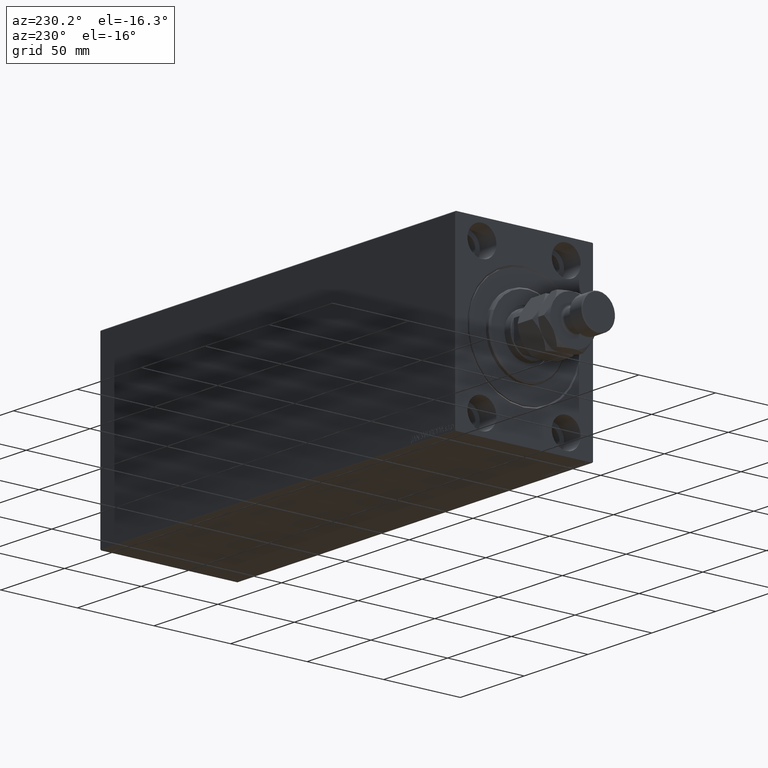
[diagram: clean part render]
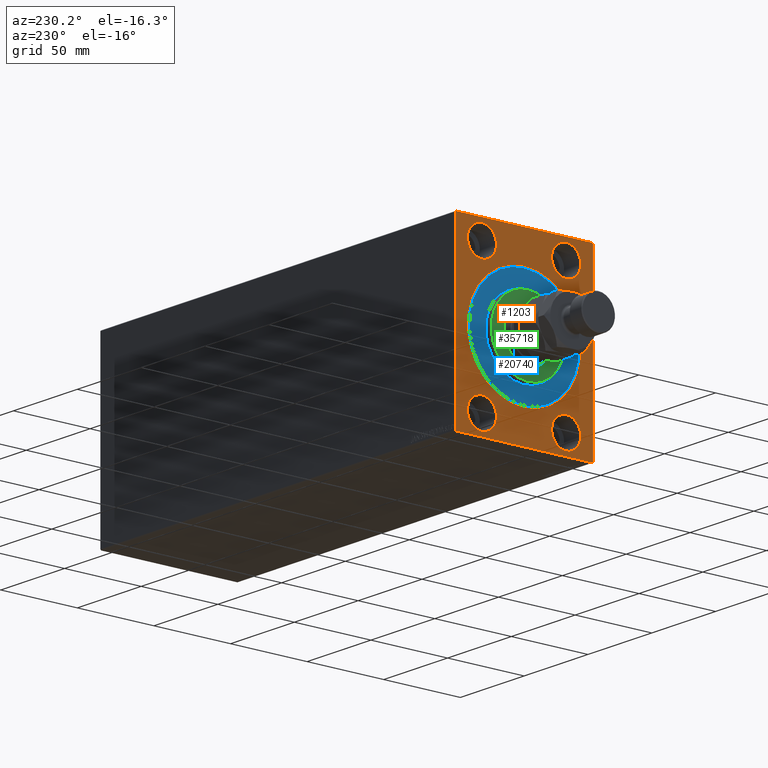
[diagram: same view with three faces highlighted in distinct colors, each labeled with its STEP entity id]
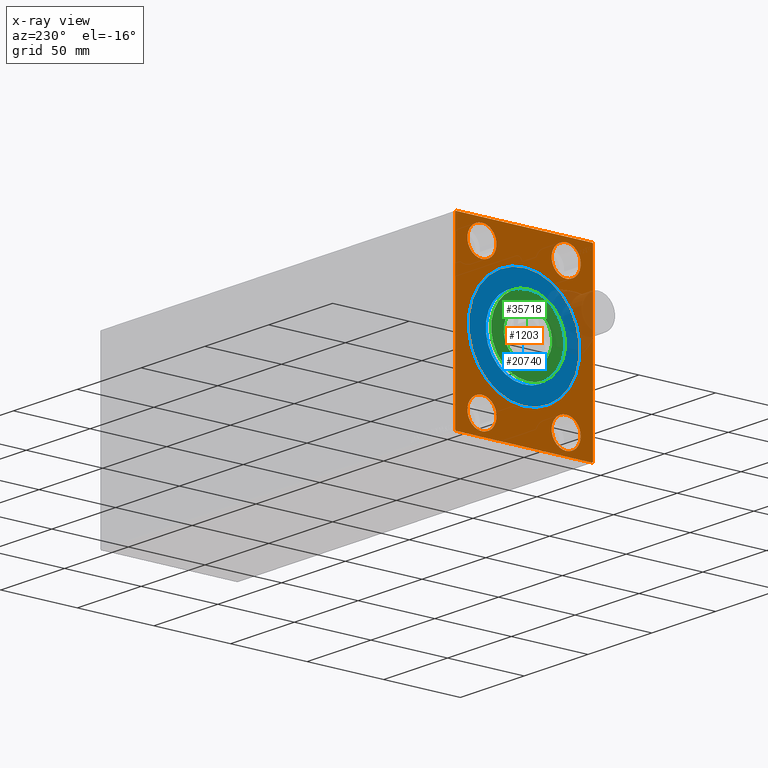
[diagram: x-ray of the same camera — body ghosted, the three highlighted faces saturated]
A machine part, auxiliary view with three faces highlighted in distinct colors.
The next image is the same camera in x-ray (body ghosted, the three faces saturated) — at least one of them is partly hidden behind the body in this view.
Their STEP definitions:

[orange] entity #1203 — the highlighted planar face has unit normal (1, 0, 0).
#392 = ORIENTED_EDGE ( 'NONE', *, *, #2142, .F. ) ;
#507 = CARTESIAN_POINT ( 'NONE',  ( 0.000000000000000000, 27.49999999999998934, -54.49999999999998579 ) ) ;
#711 = ORIENTED_EDGE ( 'NONE', *, *, #12694, .T. ) ;
#1203 = ADVANCED_FACE ( 'NONE', ( #13589, #27181, #10124, #41204, #9697, #23733 ), #6233, .F. ) ;
#1841 = EDGE_CURVE ( 'NONE', #9637, #39836, #34186, .T. ) ;
#2142 = EDGE_CURVE ( 'NONE', #14041, #44082, #45306, .T. ) ;
#2568 = CARTESIAN_POINT ( 'NONE',  ( 0.000000000000000000, -45.00000000000000000, 57.49999999999999289 ) ) ;
#2664 = DIRECTION ( 'NONE',  ( -0.000000000000000000, -0.7071067811865671127, 0.7071067811865279218 ) ) ;
#2780 = DIRECTION ( 'NONE',  ( -1.000000000000000000, 0.000000000000000000, 0.000000000000000000 ) ) ;
#3236 = CARTESIAN_POINT ( 'NONE',  ( 0.000000000000000000, 4.531193156845217837E-15, -37.00000000000008527 ) ) ;
#4355 = CIRCLE ( 'NONE', #15411, 9.500000000000001776 ) ;
#4423 = DIRECTION ( 'NONE',  ( -1.000000000000000000, 0.000000000000000000, 0.000000000000000000 ) ) ;
#4480 = CARTESIAN_POINT ( 'NONE',  ( 0.000000000000000000, 45.00000000000000000, 57.50000000000000711 ) ) ;
#4487 = CARTESIAN_POINT ( 'NONE',  ( 0.000000000000000000, 27.50000000000001066, 45.00000000000000711 ) ) ;
#5142 = EDGE_CURVE ( 'NONE', #42807, #31419, #4355, .T. ) ;
#5527 = CIRCLE ( 'NONE', #37123, 9.500000000000001776 ) ;
#5654 = LINE ( 'NONE', #22687, #32295 ) ;
#6233 = PLANE ( 'NONE',  #37349 ) ;
#6273 = CARTESIAN_POINT ( 'NONE',  ( 0.000000000000000000, -27.49999999999998934, 35.50000000000000711 ) ) ;
#6382 = VERTEX_POINT ( 'NONE', #37944 ) ;
#6510 = ORIENTED_EDGE ( 'NONE', *, *, #44429, .F. ) ;
#6589 = ORIENTED_EDGE ( 'NONE', *, *, #22812, .T. ) ;
#6809 = EDGE_LOOP ( 'NONE', ( #6510, #11216 ) ) ;
#6939 = ORIENTED_EDGE ( 'NONE', *, *, #36556, .F. ) ;
#7248 = CARTESIAN_POINT ( 'NONE',  ( 0.000000000000000000, 0.000000000000000000, 0.000000000000000000 ) ) ;
#8079 = ORIENTED_EDGE ( 'NONE', *, *, #32012, .T. ) ;
#8090 = AXIS2_PLACEMENT_3D ( 'NONE', #42616, #4423, #21909 ) ;
#8099 = EDGE_LOOP ( 'NONE', ( #14719, #6589, #40373, #42145, #392, #711, #8319, #34102 ) ) ;
#8319 = ORIENTED_EDGE ( 'NONE', *, *, #37250, .F. ) ;
#8341 = CARTESIAN_POINT ( 'NONE',  ( 0.000000000000000000, 44.50000000000000000, 57.50000000000000711 ) ) ;
#8735 = EDGE_LOOP ( 'NONE', ( #29106, #32923 ) ) ;
#8911 = VERTEX_POINT ( 'NONE', #26658 ) ;
#9637 = VERTEX_POINT ( 'NONE', #25347 ) ;
#9697 = FACE_BOUND ( 'NONE', #24821, .T. ) ;
#10124 = FACE_BOUND ( 'NONE', #8735, .T. ) ;
#10447 = CARTESIAN_POINT ( 'NONE',  ( 0.000000000000000000, -27.50000000000000000, -54.49999999999998579 ) ) ;
#10473 = DIRECTION ( 'NONE',  ( 0.000000000000000000, 0.000000000000000000, -1.000000000000000000 ) ) ;
#10612 = VERTEX_POINT ( 'NONE', #32243 ) ;
#10635 = DIRECTION ( 'NONE',  ( 1.000000000000000000, 0.000000000000000000, 0.000000000000000000 ) ) ;
#10695 = DIRECTION ( 'NONE',  ( 1.000000000000000000, 0.000000000000000000, 0.000000000000000000 ) ) ;
#11181 = CARTESIAN_POINT ( 'NONE',  ( 0.000000000000000000, -27.50000000000000000, -35.49999999999998579 ) ) ;
#11216 = ORIENTED_EDGE ( 'NONE', *, *, #5142, .F. ) ;
#11773 = AXIS2_PLACEMENT_3D ( 'NONE', #26234, #36570, #40494 ) ;
#12010 = VERTEX_POINT ( 'NONE', #6273 ) ;
#12356 = CARTESIAN_POINT ( 'NONE',  ( 0.000000000000000000, -27.50000000000000000, -44.99999999999998579 ) ) ;
#12642 = VERTEX_POINT ( 'NONE', #11181 ) ;
#12694 = EDGE_CURVE ( 'NONE', #14041, #42310, #38561, .T. ) ;
#13405 = CARTESIAN_POINT ( 'NONE',  ( 0.000000000000000000, -45.00000000000000000, 56.99999999999999289 ) ) ;
#13490 = AXIS2_PLACEMENT_3D ( 'NONE', #26696, #23231, #26005 ) ;
#13589 = FACE_BOUND ( 'NONE', #34972, .T. ) ;
#13637 = ORIENTED_EDGE ( 'NONE', *, *, #40428, .T. ) ;
#13747 = VECTOR ( 'NONE', #17404, 1000.000000000000000 ) ;
#14041 = VERTEX_POINT ( 'NONE', #44249 ) ;
#14105 = DIRECTION ( 'NONE',  ( 0.000000000000000000, 0.000000000000000000, -1.000000000000000000 ) ) ;
#14584 = EDGE_CURVE ( 'NONE', #22923, #44082, #40083, .T. ) ;
#14719 = ORIENTED_EDGE ( 'NONE', *, *, #24465, .F. ) ;
#15411 = AXIS2_PLACEMENT_3D ( 'NONE', #4487, #36231, #43601 ) ;
#15681 = ORIENTED_EDGE ( 'NONE', *, *, #44117, .F. ) ;
#16813 = CARTESIAN_POINT ( 'NONE',  ( 0.000000000000000000, 0.000000000000000000, 0.000000000000000000 ) ) ;
#17404 = DIRECTION ( 'NONE',  ( 0.000000000000000000, -0.7071067811865279218, -0.7071067811865672237 ) ) ;
#17479 = CARTESIAN_POINT ( 'NONE',  ( 0.000000000000000000, 45.00000000000001421, -57.50000000000000711 ) ) ;
#17485 = DIRECTION ( 'NONE',  ( 0.000000000000000000, 0.000000000000000000, 1.000000000000000000 ) ) ;
#17604 = DIRECTION ( 'NONE',  ( 0.000000000000000000, 0.000000000000000000, 1.000000000000000000 ) ) ;
#17618 = LINE ( 'NONE', #4480, #25134 ) ;
#17720 = CARTESIAN_POINT ( 'NONE',  ( 0.000000000000000000, -27.49999999999998934, 45.00000000000000711 ) ) ;
#17765 = EDGE_CURVE ( 'NONE', #21519, #12642, #25539, .T. ) ;
#17962 = LINE ( 'NONE', #28998, #21544 ) ;
#19402 = CIRCLE ( 'NONE', #34810, 9.500000000000001776 ) ;
#20277 = DIRECTION ( 'NONE',  ( 0.000000000000000000, 0.000000000000000000, 1.000000000000000000 ) ) ;
#21392 = DIRECTION ( 'NONE',  ( -1.000000000000000000, 0.000000000000000000, 0.000000000000000000 ) ) ;
#21415 = DIRECTION ( 'NONE',  ( 0.000000000000000000, 1.000000000000000000, 0.000000000000000000 ) ) ;
#21519 = VERTEX_POINT ( 'NONE', #10447 ) ;
#21544 = VECTOR ( 'NONE', #21415, 1000.000000000000000 ) ;
#21831 = DIRECTION ( 'NONE',  ( 0.000000000000000000, -1.206764157201257045E-16, 1.000000000000000000 ) ) ;
#21909 = DIRECTION ( 'NONE',  ( 0.000000000000000000, 0.000000000000000000, 1.000000000000000000 ) ) ;
#22193 = CARTESIAN_POINT ( 'NONE',  ( 0.000000000000000000, 27.50000000000001066, 35.50000000000000711 ) ) ;
#22687 = CARTESIAN_POINT ( 'NONE',  ( 0.000000000000000000, -45.00000000000000000, 56.99999999999999289 ) ) ;
#22812 = EDGE_CURVE ( 'NONE', #37174, #8911, #5654, .T. ) ;
#22923 = VERTEX_POINT ( 'NONE', #40162 ) ;
#23231 = DIRECTION ( 'NONE',  ( -1.000000000000000000, 0.000000000000000000, 0.000000000000000000 ) ) ;
#23733 = FACE_OUTER_BOUND ( 'NONE', #8099, .T. ) ;
#24465 = EDGE_CURVE ( 'NONE', #37174, #39836, #34091, .T. ) ;
#24821 = EDGE_LOOP ( 'NONE', ( #15681, #38513 ) ) ;
#25134 = VECTOR ( 'NONE', #38544, 1000.000000000000000 ) ;
#25230 = CIRCLE ( 'NONE', #13490, 9.500000000000001776 ) ;
#25347 = CARTESIAN_POINT ( 'NONE',  ( 0.000000000000000000, -44.50000000000000000, -57.50000000000000711 ) ) ;
#25527 = EDGE_LOOP ( 'NONE', ( #30494, #6939 ) ) ;
#25539 = CIRCLE ( 'NONE', #43895, 9.500000000000001776 ) ;
#26005 = DIRECTION ( 'NONE',  ( 0.000000000000000000, 0.000000000000000000, 1.000000000000000000 ) ) ;
#26234 = CARTESIAN_POINT ( 'NONE',  ( 0.000000000000000000, 27.50000000000001066, 45.00000000000000711 ) ) ;
#26400 = DIRECTION ( 'NONE',  ( -1.000000000000000000, 0.000000000000000000, 0.000000000000000000 ) ) ;
#26658 = CARTESIAN_POINT ( 'NONE',  ( 0.000000000000000000, -44.50000000000000000, 57.49999999999999289 ) ) ;
#26696 = CARTESIAN_POINT ( 'NONE',  ( 0.000000000000000000, 27.49999999999998934, -44.99999999999998579 ) ) ;
#27181 = FACE_BOUND ( 'NONE', #25527, .T. ) ;
#28414 = VECTOR ( 'NONE', #42841, 1000.000000000000000 ) ;
#28745 = CIRCLE ( 'NONE', #41246, 9.500000000000001776 ) ;
#28998 = CARTESIAN_POINT ( 'NONE',  ( 0.000000000000000000, -45.00000000000000000, -57.50000000000000711 ) ) ;
#29106 = ORIENTED_EDGE ( 'NONE', *, *, #38578, .F. ) ;
#29516 = CARTESIAN_POINT ( 'NONE',  ( 0.000000000000000000, 45.00000000000000000, 57.00000000000000711 ) ) ;
#30494 = ORIENTED_EDGE ( 'NONE', *, *, #42739, .F. ) ;
#30539 = EDGE_CURVE ( 'NONE', #12010, #10612, #28745, .T. ) ;
#30855 = DIRECTION ( 'NONE',  ( 1.000000000000000000, 0.000000000000000000, 0.000000000000000000 ) ) ;
#31419 = VERTEX_POINT ( 'NONE', #35423 ) ;
#32012 = EDGE_CURVE ( 'NONE', #6382, #39900, #44937, .T. ) ;
#32243 = CARTESIAN_POINT ( 'NONE',  ( 0.000000000000000000, -27.49999999999998934, 54.50000000000000711 ) ) ;
#32295 = VECTOR ( 'NONE', #36720, 1000.000000000000000 ) ;
#32923 = ORIENTED_EDGE ( 'NONE', *, *, #30539, .F. ) ;
#32973 = VECTOR ( 'NONE', #21831, 1000.000000000000000 ) ;
#33255 = EDGE_CURVE ( 'NONE', #22923, #8911, #17618, .T. ) ;
#33826 = VECTOR ( 'NONE', #45104, 1000.000000000000000 ) ;
#34091 = LINE ( 'NONE', #2568, #33826 ) ;
#34102 = ORIENTED_EDGE ( 'NONE', *, *, #1841, .T. ) ;
#34186 = LINE ( 'NONE', #44527, #41764 ) ;
#34416 = DIRECTION ( 'NONE',  ( -1.000000000000000000, 0.000000000000000000, 0.000000000000000000 ) ) ;
#34530 = CARTESIAN_POINT ( 'NONE',  ( 0.000000000000000000, -45.00000000000000000, -57.00000000000003553 ) ) ;
#34810 = AXIS2_PLACEMENT_3D ( 'NONE', #41643, #2780, #20277 ) ;
#34882 = CARTESIAN_POINT ( 'NONE',  ( 0.000000000000000000, 45.00000000000001421, -56.99999999999997868 ) ) ;
#34972 = EDGE_LOOP ( 'NONE', ( #8079, #13637 ) ) ;
#35160 = VERTEX_POINT ( 'NONE', #37682 ) ;
#35423 = CARTESIAN_POINT ( 'NONE',  ( 0.000000000000000000, 27.50000000000001066, 54.50000000000000711 ) ) ;
#35589 = AXIS2_PLACEMENT_3D ( 'NONE', #38479, #10635, #14105 ) ;
#36231 = DIRECTION ( 'NONE',  ( -1.000000000000000000, 0.000000000000000000, 0.000000000000000000 ) ) ;
#36556 = EDGE_CURVE ( 'NONE', #37075, #35160, #25230, .T. ) ;
#36570 = DIRECTION ( 'NONE',  ( -1.000000000000000000, 0.000000000000000000, 0.000000000000000000 ) ) ;
#36720 = DIRECTION ( 'NONE',  ( -0.000000000000000000, 0.7071067811865279218, 0.7071067811865671127 ) ) ;
#36730 = CIRCLE ( 'NONE', #11773, 9.500000000000001776 ) ;
#37075 = VERTEX_POINT ( 'NONE', #507 ) ;
#37123 = AXIS2_PLACEMENT_3D ( 'NONE', #41987, #34416, #17604 ) ;
#37174 = VERTEX_POINT ( 'NONE', #13405 ) ;
#37250 = EDGE_CURVE ( 'NONE', #9637, #42310, #17962, .T. ) ;
#37349 = AXIS2_PLACEMENT_3D ( 'NONE', #16813, #30855, #44870 ) ;
#37682 = CARTESIAN_POINT ( 'NONE',  ( 0.000000000000000000, 27.49999999999998934, -35.49999999999998579 ) ) ;
#37944 = CARTESIAN_POINT ( 'NONE',  ( 0.000000000000000000, 0.000000000000000000, 37.00000000000008527 ) ) ;
#38479 = CARTESIAN_POINT ( 'NONE',  ( 0.000000000000000000, 0.000000000000000000, 0.000000000000000000 ) ) ;
#38513 = ORIENTED_EDGE ( 'NONE', *, *, #17765, .F. ) ;
#38544 = DIRECTION ( 'NONE',  ( 0.000000000000000000, -1.000000000000000000, -1.541976423090495387E-16 ) ) ;
#38561 = LINE ( 'NONE', #34882, #13747 ) ;
#38578 = EDGE_CURVE ( 'NONE', #10612, #12010, #19402, .T. ) ;
#39836 = VERTEX_POINT ( 'NONE', #34530 ) ;
#39900 = VERTEX_POINT ( 'NONE', #3236 ) ;
#40083 = LINE ( 'NONE', #8341, #28414 ) ;
#40162 = CARTESIAN_POINT ( 'NONE',  ( 0.000000000000000000, 44.50000000000000000, 57.50000000000000711 ) ) ;
#40373 = ORIENTED_EDGE ( 'NONE', *, *, #33255, .F. ) ;
#40420 = DIRECTION ( 'NONE',  ( 0.000000000000000000, 0.000000000000000000, 1.000000000000000000 ) ) ;
#40428 = EDGE_CURVE ( 'NONE', #39900, #6382, #43687, .T. ) ;
#40494 = DIRECTION ( 'NONE',  ( 0.000000000000000000, 0.000000000000000000, 1.000000000000000000 ) ) ;
#41142 = CIRCLE ( 'NONE', #8090, 9.500000000000001776 ) ;
#41204 = FACE_BOUND ( 'NONE', #6809, .T. ) ;
#41246 = AXIS2_PLACEMENT_3D ( 'NONE', #17720, #21392, #17485 ) ;
#41270 = AXIS2_PLACEMENT_3D ( 'NONE', #7248, #10695, #10473 ) ;
#41643 = CARTESIAN_POINT ( 'NONE',  ( 0.000000000000000000, -27.49999999999998934, 45.00000000000000711 ) ) ;
#41764 = VECTOR ( 'NONE', #2664, 1000.000000000000000 ) ;
#41987 = CARTESIAN_POINT ( 'NONE',  ( 0.000000000000000000, 27.49999999999998934, -44.99999999999998579 ) ) ;
#42145 = ORIENTED_EDGE ( 'NONE', *, *, #14584, .T. ) ;
#42310 = VERTEX_POINT ( 'NONE', #42546 ) ;
#42546 = CARTESIAN_POINT ( 'NONE',  ( 0.000000000000000000, 44.49999999999998579, -57.50000000000000711 ) ) ;
#42616 = CARTESIAN_POINT ( 'NONE',  ( 0.000000000000000000, -27.50000000000000000, -44.99999999999998579 ) ) ;
#42739 = EDGE_CURVE ( 'NONE', #35160, #37075, #5527, .T. ) ;
#42807 = VERTEX_POINT ( 'NONE', #22193 ) ;
#42841 = DIRECTION ( 'NONE',  ( -0.000000000000000000, 0.7071067811865671127, -0.7071067811865279218 ) ) ;
#43601 = DIRECTION ( 'NONE',  ( 0.000000000000000000, 0.000000000000000000, 1.000000000000000000 ) ) ;
#43687 = CIRCLE ( 'NONE', #35589, 37.00000000000008527 ) ;
#43895 = AXIS2_PLACEMENT_3D ( 'NONE', #12356, #26400, #40420 ) ;
#44082 = VERTEX_POINT ( 'NONE', #29516 ) ;
#44117 = EDGE_CURVE ( 'NONE', #12642, #21519, #41142, .T. ) ;
#44249 = CARTESIAN_POINT ( 'NONE',  ( 0.000000000000000000, 45.00000000000001421, -56.99999999999997868 ) ) ;
#44429 = EDGE_CURVE ( 'NONE', #31419, #42807, #36730, .T. ) ;
#44527 = CARTESIAN_POINT ( 'NONE',  ( 0.000000000000000000, -44.50000000000000000, -57.50000000000000711 ) ) ;
#44870 = DIRECTION ( 'NONE',  ( 0.000000000000000000, 0.000000000000000000, -1.000000000000000000 ) ) ;
#44937 = CIRCLE ( 'NONE', #41270, 37.00000000000008527 ) ;
#45104 = DIRECTION ( 'NONE',  ( 0.000000000000000000, 0.000000000000000000, -1.000000000000000000 ) ) ;
#45306 = LINE ( 'NONE', #17479, #32973 ) ;

[blue] entity #20740 — the highlighted planar face has unit normal (1, 0, -0).
#364 = FACE_OUTER_BOUND ( 'NONE', #13105, .T. ) ;
#3047 = AXIS2_PLACEMENT_3D ( 'NONE', #14942, #14721, #35864 ) ;
#4715 = FACE_BOUND ( 'NONE', #7528, .T. ) ;
#6252 = VERTEX_POINT ( 'NONE', #8063 ) ;
#6733 = ORIENTED_EDGE ( 'NONE', *, *, #38198, .F. ) ;
#6900 = CIRCLE ( 'NONE', #31864, 36.00000000000000000 ) ;
#7528 = EDGE_LOOP ( 'NONE', ( #10458, #12015 ) ) ;
#7645 = EDGE_CURVE ( 'NONE', #24164, #15639, #35186, .T. ) ;
#8063 = CARTESIAN_POINT ( 'NONE',  ( 0.000000000000000000, 0.000000000000000000, -36.00000000000000000 ) ) ;
#9631 = DIRECTION ( 'NONE',  ( 0.000000000000000000, 0.000000000000000000, -1.000000000000000000 ) ) ;
#10458 = ORIENTED_EDGE ( 'NONE', *, *, #30519, .F. ) ;
#10945 = CARTESIAN_POINT ( 'NONE',  ( 0.000000000000000000, 0.000000000000000000, 0.000000000000000000 ) ) ;
#10952 = CARTESIAN_POINT ( 'NONE',  ( 0.000000000000000000, 0.000000000000000000, 0.000000000000000000 ) ) ;
#12015 = ORIENTED_EDGE ( 'NONE', *, *, #7645, .F. ) ;
#12420 = AXIS2_PLACEMENT_3D ( 'NONE', #45026, #41138, #9631 ) ;
#13105 = EDGE_LOOP ( 'NONE', ( #14014, #6733 ) ) ;
#14014 = ORIENTED_EDGE ( 'NONE', *, *, #35204, .F. ) ;
#14126 = CARTESIAN_POINT ( 'NONE',  ( 0.000000000000000000, 4.408728476930470856E-15, 36.00000000000000000 ) ) ;
#14721 = DIRECTION ( 'NONE',  ( 1.000000000000000000, -0.000000000000000000, 0.000000000000000000 ) ) ;
#14942 = CARTESIAN_POINT ( 'NONE',  ( 0.000000000000000000, 0.000000000000000000, 0.000000000000000000 ) ) ;
#15639 = VERTEX_POINT ( 'NONE', #20034 ) ;
#17863 = DIRECTION ( 'NONE',  ( -1.000000000000000000, 0.000000000000000000, 0.000000000000000000 ) ) ;
#20034 = CARTESIAN_POINT ( 'NONE',  ( 0.000000000000000000, 0.000000000000000000, 25.00000000000000000 ) ) ;
#20740 = ADVANCED_FACE ( 'NONE', ( #4715, #364 ), #21982, .F. ) ;
#20979 = VERTEX_POINT ( 'NONE', #14126 ) ;
#21077 = DIRECTION ( 'NONE',  ( 0.000000000000000000, 0.000000000000000000, 1.000000000000000000 ) ) ;
#21982 = PLANE ( 'NONE',  #31506 ) ;
#23329 = CARTESIAN_POINT ( 'NONE',  ( 0.000000000000000000, 3.061616997868383043E-15, -25.00000000000000000 ) ) ;
#24164 = VERTEX_POINT ( 'NONE', #23329 ) ;
#26701 = AXIS2_PLACEMENT_3D ( 'NONE', #10952, #17863, #21077 ) ;
#30519 = EDGE_CURVE ( 'NONE', #15639, #24164, #32431, .T. ) ;
#31506 = AXIS2_PLACEMENT_3D ( 'NONE', #10945, #35555, #36009 ) ;
#31725 = DIRECTION ( 'NONE',  ( 0.000000000000000000, 0.000000000000000000, 1.000000000000000000 ) ) ;
#31864 = AXIS2_PLACEMENT_3D ( 'NONE', #37948, #35156, #31725 ) ;
#32431 = CIRCLE ( 'NONE', #3047, 25.00000000000000000 ) ;
#35156 = DIRECTION ( 'NONE',  ( -1.000000000000000000, 0.000000000000000000, 0.000000000000000000 ) ) ;
#35186 = CIRCLE ( 'NONE', #12420, 25.00000000000000000 ) ;
#35204 = EDGE_CURVE ( 'NONE', #6252, #20979, #35466, .T. ) ;
#35466 = CIRCLE ( 'NONE', #26701, 36.00000000000000000 ) ;
#35555 = DIRECTION ( 'NONE',  ( -1.000000000000000000, 0.000000000000000000, 0.000000000000000000 ) ) ;
#35864 = DIRECTION ( 'NONE',  ( 0.000000000000000000, 0.000000000000000000, -1.000000000000000000 ) ) ;
#36009 = DIRECTION ( 'NONE',  ( 0.000000000000000000, 0.000000000000000000, 1.000000000000000000 ) ) ;
#37948 = CARTESIAN_POINT ( 'NONE',  ( 0.000000000000000000, 0.000000000000000000, 0.000000000000000000 ) ) ;
#38198 = EDGE_CURVE ( 'NONE', #20979, #6252, #6900, .T. ) ;
#41138 = DIRECTION ( 'NONE',  ( 1.000000000000000000, -0.000000000000000000, 0.000000000000000000 ) ) ;
#45026 = CARTESIAN_POINT ( 'NONE',  ( 0.000000000000000000, 0.000000000000000000, 0.000000000000000000 ) ) ;

[green] entity #35718 — the highlighted planar face has unit normal (-1, 0, 0).
#758 = CARTESIAN_POINT ( 'NONE',  ( 3.000000000000000000, 0.000000000000000000, 0.000000000000000000 ) ) ;
#2149 = CIRCLE ( 'NONE', #41147, 24.00000000000000711 ) ;
#2314 = CARTESIAN_POINT ( 'NONE',  ( 3.000000000000000000, 0.000000000000000000, 0.000000000000000000 ) ) ;
#4201 = DIRECTION ( 'NONE',  ( 0.000000000000000000, 0.000000000000000000, -1.000000000000000000 ) ) ;
#4586 = VERTEX_POINT ( 'NONE', #21175 ) ;
#5818 = CARTESIAN_POINT ( 'NONE',  ( 3.000000000000000000, 3.000384657911015469E-15, -24.00000000000000711 ) ) ;
#6741 = CIRCLE ( 'NONE', #32468, 15.75000000000000000 ) ;
#6758 = CARTESIAN_POINT ( 'NONE',  ( 3.000000000000000000, 0.000000000000000000, 0.000000000000000000 ) ) ;
#8547 = EDGE_CURVE ( 'NONE', #29883, #43126, #33037, .T. ) ;
#8767 = CARTESIAN_POINT ( 'NONE',  ( 3.000000000000000000, 1.928818708657080950E-15, -15.75000000000000000 ) ) ;
#10065 = ORIENTED_EDGE ( 'NONE', *, *, #28582, .T. ) ;
#13496 = ORIENTED_EDGE ( 'NONE', *, *, #20952, .T. ) ;
#16462 = DIRECTION ( 'NONE',  ( -1.000000000000000000, 0.000000000000000000, -0.000000000000000000 ) ) ;
#20480 = FACE_OUTER_BOUND ( 'NONE', #28065, .T. ) ;
#20795 = DIRECTION ( 'NONE',  ( 0.000000000000000000, 0.000000000000000000, -1.000000000000000000 ) ) ;
#20952 = EDGE_CURVE ( 'NONE', #4586, #34699, #32262, .T. ) ;
#21175 = CARTESIAN_POINT ( 'NONE',  ( 3.000000000000000000, 0.000000000000000000, 24.00000000000000711 ) ) ;
#21194 = ORIENTED_EDGE ( 'NONE', *, *, #8547, .T. ) ;
#22745 = CARTESIAN_POINT ( 'NONE',  ( 3.000000000000000000, 0.000000000000000000, 0.000000000000000000 ) ) ;
#23185 = EDGE_CURVE ( 'NONE', #34699, #4586, #2149, .T. ) ;
#23939 = FACE_BOUND ( 'NONE', #34176, .T. ) ;
#28065 = EDGE_LOOP ( 'NONE', ( #13496, #29564 ) ) ;
#28582 = EDGE_CURVE ( 'NONE', #43126, #29883, #6741, .T. ) ;
#28813 = CARTESIAN_POINT ( 'NONE',  ( 3.000000000000000000, 0.000000000000000000, 15.75000000000000000 ) ) ;
#29564 = ORIENTED_EDGE ( 'NONE', *, *, #23185, .T. ) ;
#29883 = VERTEX_POINT ( 'NONE', #8767 ) ;
#31855 = DIRECTION ( 'NONE',  ( 1.000000000000000000, -0.000000000000000000, 0.000000000000000000 ) ) ;
#32262 = CIRCLE ( 'NONE', #35174, 24.00000000000000711 ) ;
#32468 = AXIS2_PLACEMENT_3D ( 'NONE', #6758, #16462, #20795 ) ;
#33037 = CIRCLE ( 'NONE', #44037, 15.75000000000000000 ) ;
#33224 = DIRECTION ( 'NONE',  ( 0.000000000000000000, 0.000000000000000000, -1.000000000000000000 ) ) ;
#34017 = AXIS2_PLACEMENT_3D ( 'NONE', #2314, #37741, #37958 ) ;
#34176 = EDGE_LOOP ( 'NONE', ( #10065, #21194 ) ) ;
#34510 = PLANE ( 'NONE',  #34017 ) ;
#34699 = VERTEX_POINT ( 'NONE', #5818 ) ;
#35174 = AXIS2_PLACEMENT_3D ( 'NONE', #758, #35500, #4201 ) ;
#35291 = CARTESIAN_POINT ( 'NONE',  ( 3.000000000000000000, 0.000000000000000000, 0.000000000000000000 ) ) ;
#35500 = DIRECTION ( 'NONE',  ( 1.000000000000000000, -0.000000000000000000, 0.000000000000000000 ) ) ;
#35718 = ADVANCED_FACE ( 'NONE', ( #20480, #23939 ), #34510, .T. ) ;
#37741 = DIRECTION ( 'NONE',  ( 1.000000000000000000, -0.000000000000000000, 0.000000000000000000 ) ) ;
#37958 = DIRECTION ( 'NONE',  ( 0.000000000000000000, 0.000000000000000000, -1.000000000000000000 ) ) ;
#40217 = DIRECTION ( 'NONE',  ( -1.000000000000000000, 0.000000000000000000, -0.000000000000000000 ) ) ;
#41147 = AXIS2_PLACEMENT_3D ( 'NONE', #35291, #31855, #33224 ) ;
#43126 = VERTEX_POINT ( 'NONE', #28813 ) ;
#43900 = DIRECTION ( 'NONE',  ( 0.000000000000000000, 0.000000000000000000, -1.000000000000000000 ) ) ;
#44037 = AXIS2_PLACEMENT_3D ( 'NONE', #22745, #40217, #43900 ) ;